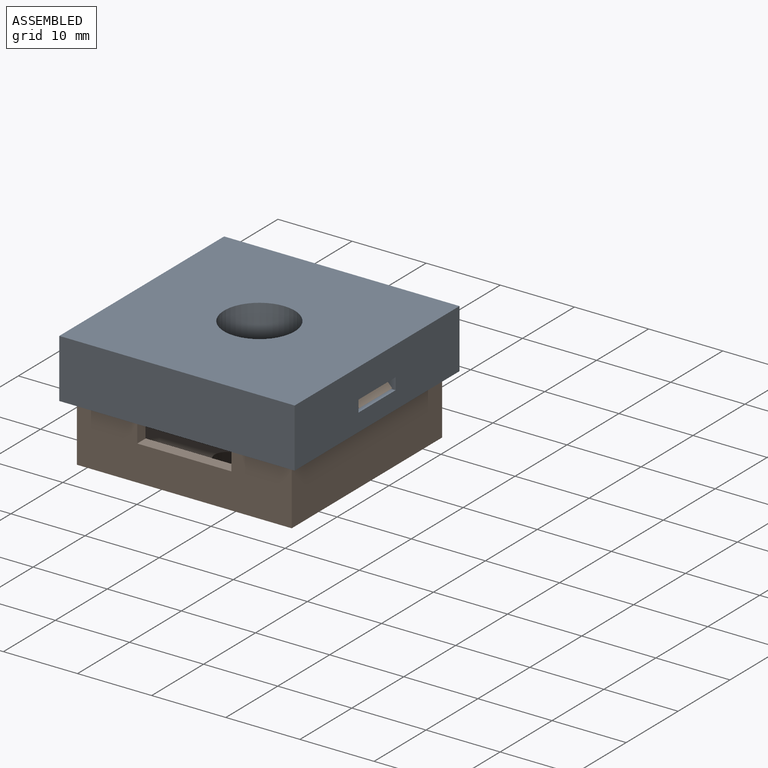
[diagram: assembled view]
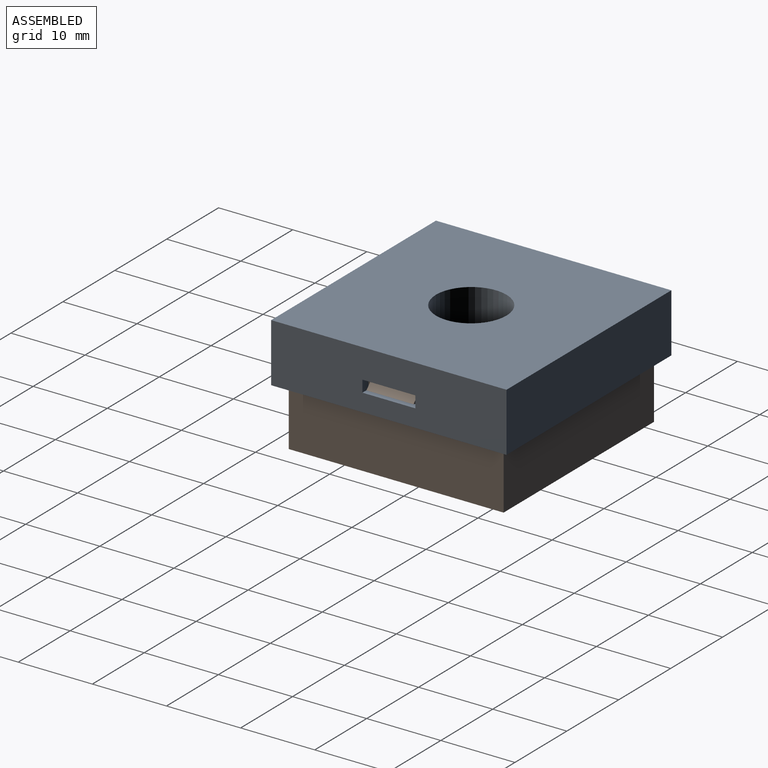
[diagram: assembled view, second angle]
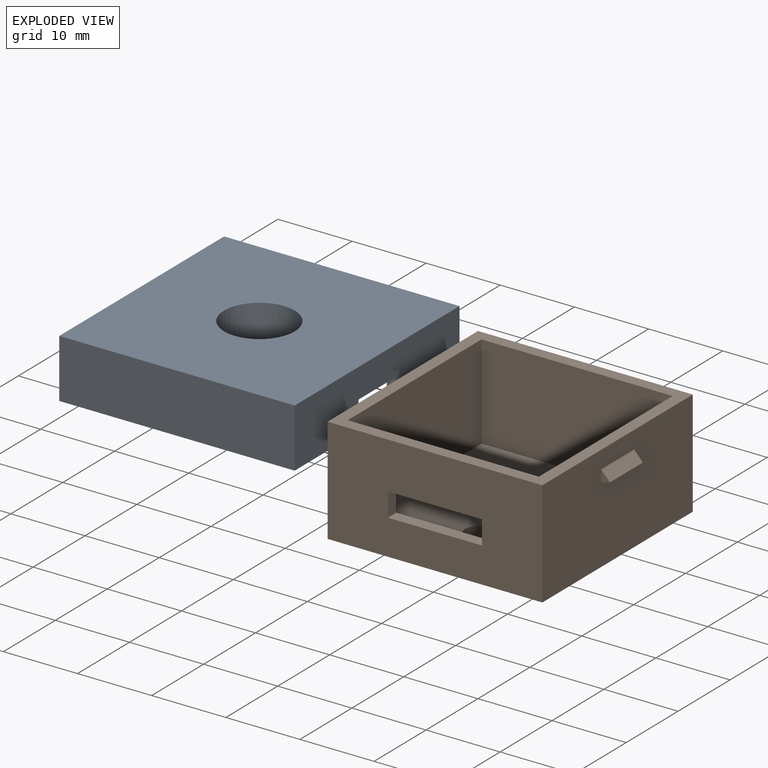
[diagram: exploded view]
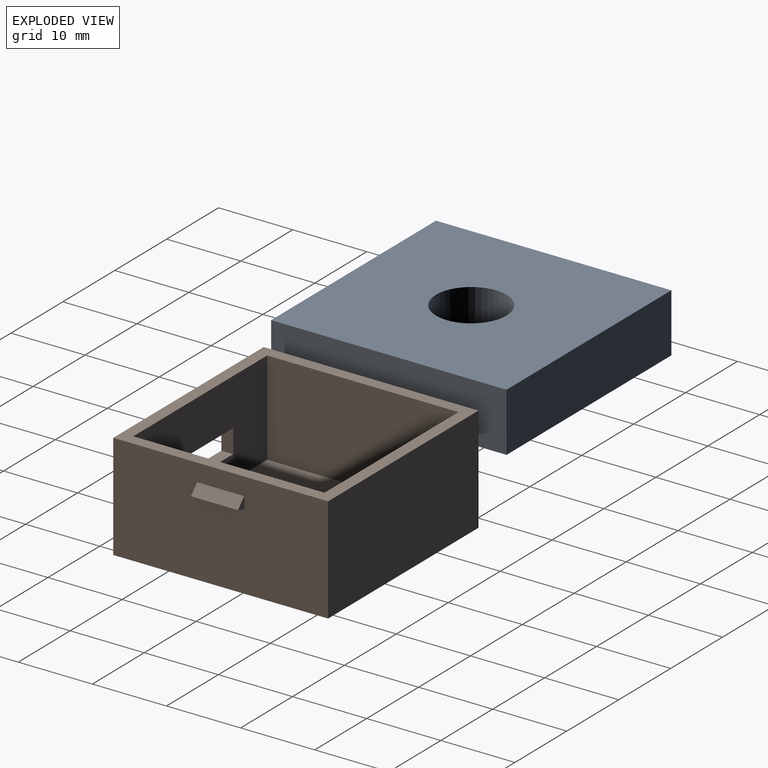
[diagram: exploded view, second angle]
ASSEMBLY  parts=2 mates=2
PART A: 22 faces, bbox 31.8x31.8x7.9 mm
  f0: plane 29.37x29.37mm, normal (0,0,1), area 664.6mm2, adj f1,f2,f3,f8,f12
  f1: plane 29.37x6.35mm, normal (-1,0,0), area 186.5mm2, adj f0,f2,f8,f9
  f2: plane 29.37x6.35mm, normal (0,1,0), area 175.2mm2, adj f0,f1,f3,f9,f18,f19,f20,f21
  f3: plane 29.37x6.35mm, normal (1,0,0), area 186.5mm2, adj f0,f2,f8,f9
  f4: plane 31.75x7.94mm, normal (0,-1,0), area 240.7mm2, adj f5,f7,f9,f10,f18,f19,f20,f21
  f5: plane 31.75x7.94mm, normal (1,0,0), area 252mm2, adj f4,f6,f9,f10
  f6: plane 31.75x7.94mm, normal (0,1,0), area 240.7mm2, adj f5,f7,f9,f10,f14,f15,f16,f17
  f7: plane 31.75x7.94mm, normal (-1,0,0), area 252mm2, adj f4,f6,f9,f10
  f8: plane 29.37x6.35mm, normal (0,-1,0), area 175.2mm2, adj f0,f1,f3,f9,f14,f15,f16,f17
  f9: plane 31.75x31.75mm, normal (0,0,1), area 145.5mm2, adj f1,f2,f3,f4,f5,f6,f7,f8
  f10: plane 31.75x31.75mm, normal (0,0,-1), area 936.8mm2, adj f4,f5,f6,f7,f11
  f11: cylinder r=4.76mm len=9.53mm, axis (0,0,-1), area 142.5mm2, adj f10,f13
  f12: cylinder r=7.94mm len=15.88mm, axis (0,0,-1), area 158.3mm2, adj f0,f13
  f13: plane 15.88x15.88mm, normal (0,0,1), area 126.7mm2, adj f11,f12
  f14: plane 1.59x1.19mm, normal (1,0,0), area 1.9mm2, adj f6,f8,f15,f17
  f15: plane 7.14x1.19mm, normal (0,0,1), area 8.5mm2, adj f6,f8,f14,f16
  f16: plane 1.59x1.19mm, normal (-1,0,0), area 1.9mm2, adj f6,f8,f15,f17
  f17: plane 7.14x1.19mm, normal (0,0,-1), area 8.5mm2, adj f6,f8,f14,f16
  f18: plane 1.59x1.19mm, normal (-1,0,0), area 1.9mm2, adj f2,f4,f19,f21
  f19: plane 7.14x1.19mm, normal (0,0,1), area 8.5mm2, adj f2,f4,f18,f20
  f20: plane 1.59x1.19mm, normal (1,0,0), area 1.9mm2, adj f2,f4,f19,f21
  f21: plane 7.14x1.19mm, normal (0,0,-1), area 8.5mm2, adj f2,f4,f18,f20
PART B: 25 faces, bbox 31.4x29x14.3 mm
  f0: plane 25.8x12.7mm, normal (0,1,0), area 287.3mm2, adj f3,f4,f8,f10,f21,f22,f23,f24
  f1: plane 28.97x14.29mm, normal (0,-1,0), area 373.6mm2, adj f2,f5,f8,f9,f21,f22,f23,f24
  f2: plane 28.97x14.29mm, normal (-1,0,0), area 403.9mm2, adj f1,f6,f8,f9,f15,f16,f17,f18
  f3: plane 25.8x12.7mm, normal (-1,0,0), area 327.6mm2, adj f0,f7,f8,f10
  f4: plane 25.8x12.7mm, normal (1,0,0), area 327.6mm2, adj f0,f7,f8,f10
  f5: plane 28.97x14.29mm, normal (1,0,0), area 403.9mm2, adj f1,f6,f8,f9,f11,f12,f13,f14
  f6: plane 28.97x14.29mm, normal (0,1,0), area 413.9mm2, adj f2,f5,f8,f9
  f7: plane 25.8x12.7mm, normal (0,-1,0), area 327.6mm2, adj f3,f4,f8,f10
  f8: plane 28.97x28.97mm, normal (0,0,1), area 173.9mm2, adj f0,f1,f2,f3,f4,f5,f6,f7
  f9: plane 28.97x28.97mm, normal (0,0,-1), area 823.5mm2, adj f1,f2,f5,f6,f19,f20
  f10: plane 25.8x25.8mm, normal (0,0,1), area 649.6mm2, adj f0,f3,f4,f7,f19,f20
  f11: plane 6.35x1.19mm, normal (0.26,0,-0.97), area 7.8mm2, adj f5,f12,f13,f14
  f12: plane 6.35x1.27mm, normal (0.73,0,0.68), area 11mm2, adj f5,f11,f13,f14
  f13: plane 1.59x1.19mm, normal (0,-1,0), area 0.9mm2, adj f5,f11,f12
  f14: plane 1.59x1.19mm, normal (0,1,0), area 0.9mm2, adj f5,f11,f12
  f15: plane 6.35x1.19mm, normal (-0.26,0,-0.97), area 7.8mm2, adj f2,f16,f17,f18
  f16: plane 6.35x1.27mm, normal (-0.73,0,0.68), area 11mm2, adj f2,f15,f17,f18
  f17: plane 1.59x1.19mm, normal (0,1,0), area 0.9mm2, adj f2,f15,f16
  f18: plane 1.59x1.19mm, normal (0,-1,0), area 0.9mm2, adj f2,f15,f16
  f19: cylinder r=1.59mm len=3.18mm, axis (0,0,1), area 15.8mm2, adj f9,f10
  f20: cylinder r=1.59mm len=3.18mm, axis (0,0,1), area 15.8mm2, adj f9,f10
  f21: plane 12.7x1.59mm, normal (0,0,1), area 20.2mm2, adj f0,f1,f22,f24
  f22: plane 3.18x1.59mm, normal (-1,0,0), area 5mm2, adj f0,f1,f21,f23
  f23: plane 12.7x1.59mm, normal (0,0,-1), area 20.2mm2, adj f0,f1,f22,f24
  f24: plane 3.18x1.59mm, normal (1,0,0), area 5mm2, adj f0,f1,f21,f23
PLACE A rot(axis=(0.71,-0.71,0),180deg) t=(13.99,17.89,13.15)mm
PLACE B t=(13.99,17.91,-2.73)mm fixed
MATE parallel A.f4 <-> B.f5  axis (1,0,0) through (29.87,14.32,9.18)mm
MATE planar A.f11 <-> B.f8  axis (0,0,-1) through (13.99,17.89,11.56)mm
